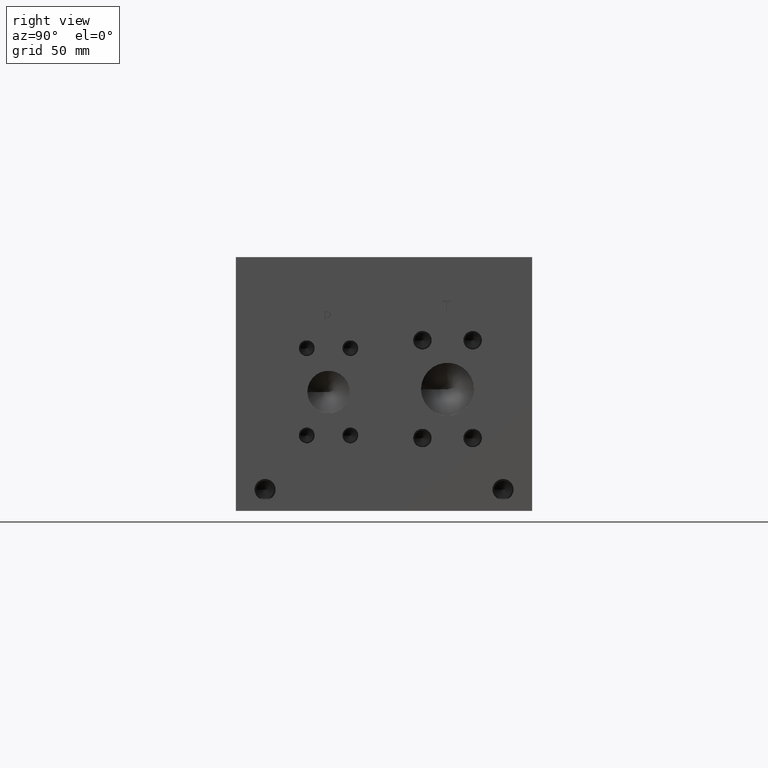
[diagram: clean part render]
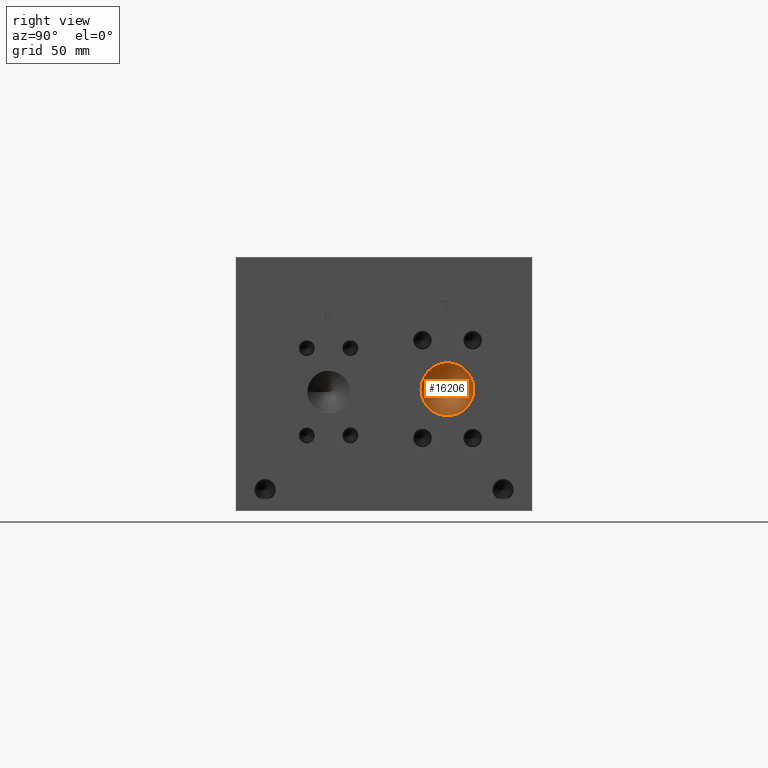
[diagram: same view with one face highlighted and labeled with its STEP entity id]
A machine part, right view. The second image highlights one B-rep face of the part: STEP entity #16206.
In plain terms, the highlighted conical surface has half-angle 60 deg.
Its self-contained STEP definition (entity closure, byte-faithful):
#190=CONICAL_SURFACE('',#17102,7.9375,1.0471975511966);
#444=CIRCLE('',#17103,15.875);
#445=CIRCLE('',#17104,15.875);
#2102=FACE_OUTER_BOUND('',#3077,.T.);
#3077=EDGE_LOOP('',(#13551,#13552,#13553,#13554));
#4633=LINE('',#26959,#6034);
#6034=VECTOR('',#20173,7.9375);
#7665=VERTEX_POINT('',#26955);
#7666=VERTEX_POINT('',#26956);
#7667=VERTEX_POINT('',#26958);
#9788=EDGE_CURVE('',#7665,#7666,#444,.T.);
#9789=EDGE_CURVE('',#7666,#7667,#4633,.T.);
#9790=EDGE_CURVE('',#7666,#7665,#445,.T.);
#13551=ORIENTED_EDGE('',*,*,#9788,.T.);
#13552=ORIENTED_EDGE('',*,*,#9789,.T.);
#13553=ORIENTED_EDGE('',*,*,#9789,.F.);
#13554=ORIENTED_EDGE('',*,*,#9790,.T.);
#16206=ADVANCED_FACE('',(#2102),#190,.F.);
#17102=AXIS2_PLACEMENT_3D('',#26954,#20169,#20170);
#17103=AXIS2_PLACEMENT_3D('',#26957,#20171,#20172);
#17104=AXIS2_PLACEMENT_3D('',#26960,#20174,#20175);
#20169=DIRECTION('center_axis',(1.,0.,0.));
#20170=DIRECTION('ref_axis',(0.,1.,0.));
#20171=DIRECTION('center_axis',(1.,0.,0.));
#20172=DIRECTION('ref_axis',(0.,1.,0.));
#20173=DIRECTION('',(-0.5,0.866025403784439,1.06057523872491E-16));
#20174=DIRECTION('center_axis',(1.,0.,0.));
#20175=DIRECTION('ref_axis',(0.,1.,0.));
#26954=CARTESIAN_POINT('Origin',(357.726842238307,127.,73.025));
#26955=CARTESIAN_POINT('',(362.30956,142.875,73.025));
#26956=CARTESIAN_POINT('',(362.30956,111.125,73.025));
#26957=CARTESIAN_POINT('Origin',(362.30956,127.,73.025));
#26958=CARTESIAN_POINT('',(353.144124476615,127.,73.025));
#26959=CARTESIAN_POINT('',(357.726842238307,119.0625,73.025));
#26960=CARTESIAN_POINT('Origin',(362.30956,127.,73.025));